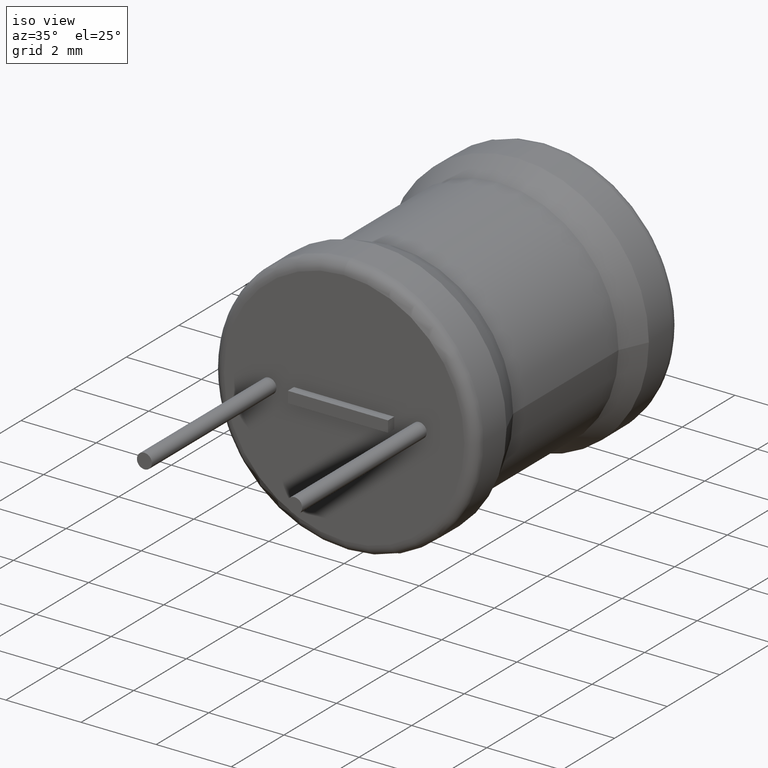
[diagram: clean part render]
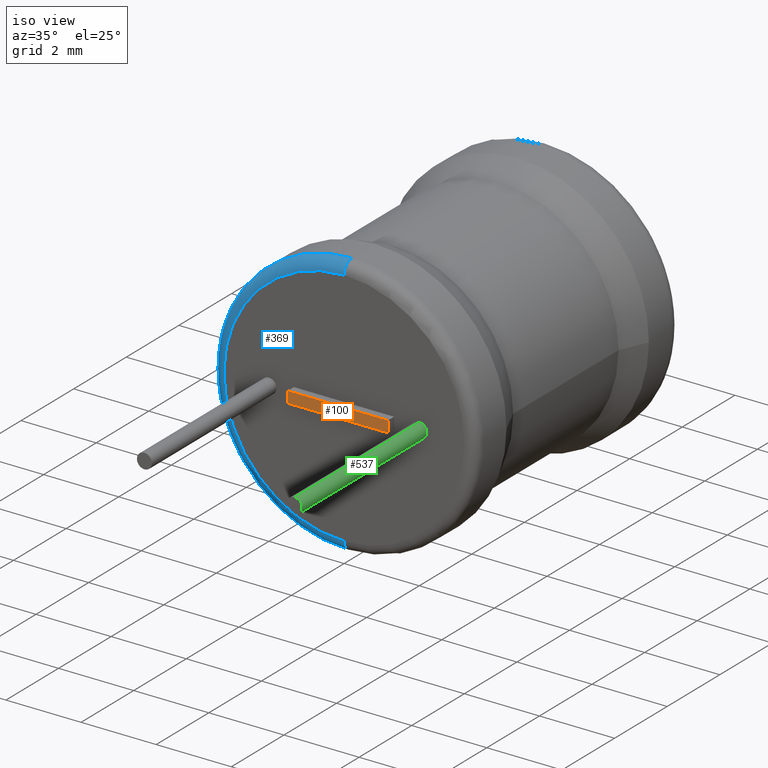
[diagram: same view with three faces highlighted in distinct colors, each labeled with its STEP entity id]
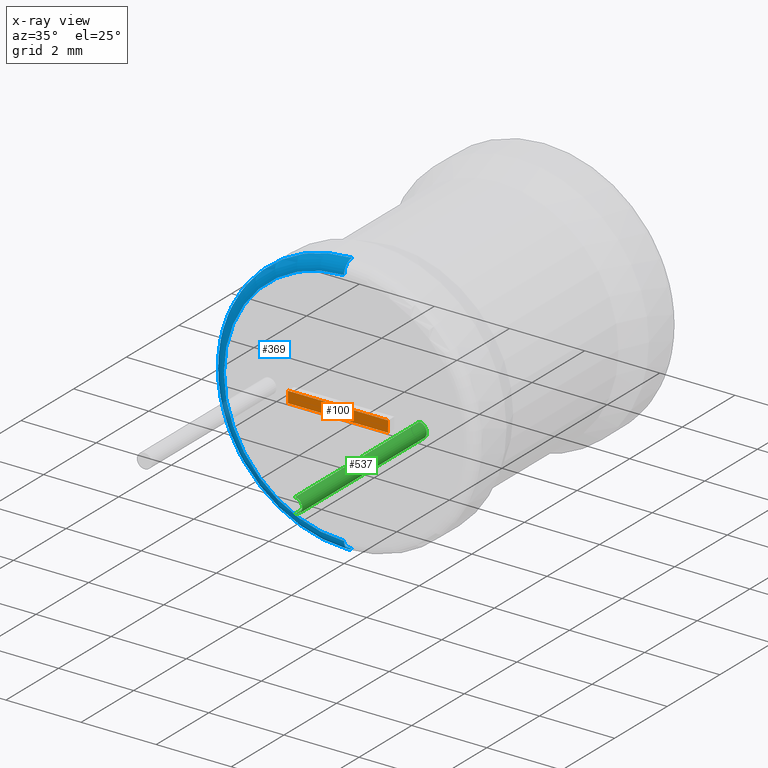
[diagram: x-ray of the same camera — body ghosted, the three highlighted faces saturated]
A machine part, iso view with three faces highlighted in distinct colors.
The next image is the same camera in x-ray (body ghosted, the three faces saturated) — at least one of them is partly hidden behind the body in this view.
Their STEP definitions:

[orange] entity #100 — the highlighted planar face has unit normal (0, -1, 0).
#47 = EDGE_CURVE ( 'NONE', #555, #2078, #2963, .T. ) ;
#100 = ADVANCED_FACE ( 'NONE', ( #1679 ), #2678, .T. ) ;
#130 = VECTOR ( 'NONE', #901, 1000.000000000000000 ) ;
#361 = DIRECTION ( 'NONE',  ( 0.0000000000000000000, -0.0000000000000000000, -1.000000000000000000 ) ) ;
#555 = VERTEX_POINT ( 'NONE', #1801 ) ;
#590 = LINE ( 'NONE', #2099, #673 ) ;
#597 = ORIENTED_EDGE ( 'NONE', *, *, #47, .F. ) ;
#598 = DIRECTION ( 'NONE',  ( 0.0000000000000000000, -0.0000000000000000000, -1.000000000000000000 ) ) ;
#673 = VECTOR ( 'NONE', #1393, 1000.000000000000000 ) ;
#866 = CARTESIAN_POINT ( 'NONE',  ( 6.018531076210112000E-033, -0.2351999999999999900, -0.1500000000000002700 ) ) ;
#901 = DIRECTION ( 'NONE',  ( -1.000000000000000000, 0.0000000000000000000, -2.641422084391221300E-016 ) ) ;
#960 = AXIS2_PLACEMENT_3D ( 'NONE', #1976, #2918, #598 ) ;
#961 = EDGE_LOOP ( 'NONE', ( #1079, #597, #2143, #2648 ) ) ;
#1079 = ORIENTED_EDGE ( 'NONE', *, *, #1642, .T. ) ;
#1255 = CARTESIAN_POINT ( 'NONE',  ( 1.334000000000000100, -0.2351999999999999900, -0.1500000000000006900 ) ) ;
#1326 = CARTESIAN_POINT ( 'NONE',  ( -1.334000000000000100, -0.2351999999999999900, 0.1499999999999992700 ) ) ;
#1393 = DIRECTION ( 'NONE',  ( -0.0000000000000000000, -0.0000000000000000000, -1.000000000000000000 ) ) ;
#1642 = EDGE_CURVE ( 'NONE', #2387, #2078, #2491, .T. ) ;
#1679 = FACE_OUTER_BOUND ( 'NONE', #961, .T. ) ;
#1732 = EDGE_CURVE ( 'NONE', #2634, #2387, #590, .T. ) ;
#1801 = CARTESIAN_POINT ( 'NONE',  ( 1.334000000000000100, -0.2351999999999999900, 0.1499999999999992700 ) ) ;
#1919 = VECTOR ( 'NONE', #2021, 1000.000000000000000 ) ;
#1976 = CARTESIAN_POINT ( 'NONE',  ( 0.0000000000000000000, -0.2351999999999999900, 0.0000000000000000000 ) ) ;
#2021 = DIRECTION ( 'NONE',  ( 1.000000000000000000, 0.0000000000000000000, 3.047794712759101800E-016 ) ) ;
#2036 = VECTOR ( 'NONE', #361, 1000.000000000000000 ) ;
#2061 = CARTESIAN_POINT ( 'NONE',  ( 0.0000000000000000000, -0.2351999999999999900, 0.1499999999999996300 ) ) ;
#2064 = CARTESIAN_POINT ( 'NONE',  ( -1.334000000000000100, -0.2351999999999999900, -0.1500000000000006900 ) ) ;
#2078 = VERTEX_POINT ( 'NONE', #2884 ) ;
#2099 = CARTESIAN_POINT ( 'NONE',  ( -1.334000000000000100, -0.2351999999999999900, -0.1500000000000006900 ) ) ;
#2143 = ORIENTED_EDGE ( 'NONE', *, *, #2230, .T. ) ;
#2230 = EDGE_CURVE ( 'NONE', #555, #2634, #2926, .T. ) ;
#2387 = VERTEX_POINT ( 'NONE', #2064 ) ;
#2491 = LINE ( 'NONE', #866, #1919 ) ;
#2634 = VERTEX_POINT ( 'NONE', #1326 ) ;
#2648 = ORIENTED_EDGE ( 'NONE', *, *, #1732, .T. ) ;
#2678 = PLANE ( 'NONE',  #960 ) ;
#2884 = CARTESIAN_POINT ( 'NONE',  ( 1.334000000000000100, -0.2351999999999999900, -0.1500000000000006900 ) ) ;
#2918 = DIRECTION ( 'NONE',  ( 0.0000000000000000000, -1.000000000000000000, 0.0000000000000000000 ) ) ;
#2926 = LINE ( 'NONE', #2061, #130 ) ;
#2963 = LINE ( 'NONE', #1255, #2036 ) ;

[blue] entity #369 — the highlighted toroidal blend (fillet) surface has major radius 3.2 mm and minor (blend) radius 0.3 mm.
#49 = DIRECTION ( 'NONE',  ( 0.0000000000000000000, 0.0000000000000000000, 1.000000000000000000 ) ) ;
#93 = DIRECTION ( 'NONE',  ( 0.0000000000000000000, 1.000000000000000000, 0.0000000000000000000 ) ) ;
#161 = VERTEX_POINT ( 'NONE', #241 ) ;
#241 = CARTESIAN_POINT ( 'NONE',  ( 4.286263797015735600E-016, 0.2999999999999999300, 3.500000000000000000 ) ) ;
#243 = CARTESIAN_POINT ( 'NONE',  ( 4.102566777143633300E-016, 0.0000000000000000000, -3.200000000000000200 ) ) ;
#311 = CARTESIAN_POINT ( 'NONE',  ( 0.0000000000000000000, 0.0000000000000000000, 3.200000000000000200 ) ) ;
#334 = AXIS2_PLACEMENT_3D ( 'NONE', #1130, #1350, #1604 ) ;
#369 = ADVANCED_FACE ( 'NONE', ( #2553 ), #2630, .T. ) ;
#415 = CIRCLE ( 'NONE', #2449, 0.2999999999999999300 ) ;
#439 = AXIS2_PLACEMENT_3D ( 'NONE', #2756, #891, #2500 ) ;
#517 = CARTESIAN_POINT ( 'NONE',  ( 0.0000000000000000000, 0.2999999999999999300, 3.200000000000000200 ) ) ;
#731 = DIRECTION ( 'NONE',  ( -1.000000000000000000, 0.0000000000000000000, 0.0000000000000000000 ) ) ;
#882 = VERTEX_POINT ( 'NONE', #311 ) ;
#891 = DIRECTION ( 'NONE',  ( 0.0000000000000000000, 1.000000000000000000, 0.0000000000000000000 ) ) ;
#1031 = DIRECTION ( 'NONE',  ( 0.0000000000000000000, 0.0000000000000000000, 1.000000000000000000 ) ) ;
#1037 = CARTESIAN_POINT ( 'NONE',  ( 0.0000000000000000000, 0.0000000000000000000, 0.0000000000000000000 ) ) ;
#1045 = AXIS2_PLACEMENT_3D ( 'NONE', #1037, #2646, #1713 ) ;
#1055 = ORIENTED_EDGE ( 'NONE', *, *, #1940, .F. ) ;
#1130 = CARTESIAN_POINT ( 'NONE',  ( 3.918869757271530500E-016, 0.2999999999999999300, -3.200000000000000200 ) ) ;
#1222 = CIRCLE ( 'NONE', #334, 0.2999999999999999300 ) ;
#1302 = ORIENTED_EDGE ( 'NONE', *, *, #2598, .F. ) ;
#1350 = DIRECTION ( 'NONE',  ( 1.000000000000000000, -0.0000000000000000000, 1.224646799147353200E-016 ) ) ;
#1418 = EDGE_CURVE ( 'NONE', #882, #161, #415, .T. ) ;
#1464 = AXIS2_PLACEMENT_3D ( 'NONE', #1754, #93, #1031 ) ;
#1582 = EDGE_LOOP ( 'NONE', ( #1302, #1055, #2587, #2728 ) ) ;
#1604 = DIRECTION ( 'NONE',  ( 1.224646799147353200E-016, 0.0000000000000000000, -1.000000000000000000 ) ) ;
#1713 = DIRECTION ( 'NONE',  ( 0.0000000000000000000, 0.0000000000000000000, 1.000000000000000000 ) ) ;
#1754 = CARTESIAN_POINT ( 'NONE',  ( 0.0000000000000000000, 0.2999999999999999300, 0.0000000000000000000 ) ) ;
#1940 = EDGE_CURVE ( 'NONE', #882, #2863, #2368, .T. ) ;
#2160 = VERTEX_POINT ( 'NONE', #2466 ) ;
#2368 = CIRCLE ( 'NONE', #1045, 3.200000000000000200 ) ;
#2418 = EDGE_CURVE ( 'NONE', #2160, #161, #2790, .T. ) ;
#2449 = AXIS2_PLACEMENT_3D ( 'NONE', #517, #731, #49 ) ;
#2466 = CARTESIAN_POINT ( 'NONE',  ( 0.0000000000000000000, 0.2999999999999999300, -3.500000000000000000 ) ) ;
#2500 = DIRECTION ( 'NONE',  ( 0.0000000000000000000, 0.0000000000000000000, 1.000000000000000000 ) ) ;
#2553 = FACE_OUTER_BOUND ( 'NONE', #1582, .T. ) ;
#2587 = ORIENTED_EDGE ( 'NONE', *, *, #1418, .T. ) ;
#2598 = EDGE_CURVE ( 'NONE', #2863, #2160, #1222, .T. ) ;
#2630 = TOROIDAL_SURFACE ( 'NONE', #1464, 3.200000000000000200, 0.2999999999999999900 ) ;
#2646 = DIRECTION ( 'NONE',  ( -0.0000000000000000000, -1.000000000000000000, -0.0000000000000000000 ) ) ;
#2728 = ORIENTED_EDGE ( 'NONE', *, *, #2418, .F. ) ;
#2756 = CARTESIAN_POINT ( 'NONE',  ( 0.0000000000000000000, 0.2999999999999999300, 0.0000000000000000000 ) ) ;
#2790 = CIRCLE ( 'NONE', #439, 3.500000000000000000 ) ;
#2863 = VERTEX_POINT ( 'NONE', #243 ) ;

[green] entity #537 — the highlighted cylindrical surface (edge-blend (fillet) strip) has radius 0.2 mm, axis along (-0, 1, -0).
#4 = CARTESIAN_POINT ( 'NONE',  ( 2.000000000000000000, 0.0000000000000000000, -0.2000000000000002300 ) ) ;
#14 = LINE ( 'NONE', #1131, #2170 ) ;
#194 = EDGE_CURVE ( 'NONE', #1763, #457, #14, .T. ) ;
#457 = VERTEX_POINT ( 'NONE', #2369 ) ;
#478 = FACE_OUTER_BOUND ( 'NONE', #1659, .T. ) ;
#537 = ADVANCED_FACE ( 'NONE', ( #478 ), #2414, .T. ) ;
#660 = DIRECTION ( 'NONE',  ( -0.0000000000000000000, 1.000000000000000000, -0.0000000000000000000 ) ) ;
#863 = ORIENTED_EDGE ( 'NONE', *, *, #194, .F. ) ;
#885 = DIRECTION ( 'NONE',  ( -0.0000000000000000000, 1.000000000000000000, -0.0000000000000000000 ) ) ;
#1131 = CARTESIAN_POINT ( 'NONE',  ( 2.000000000000000000, -4.735199999999999900, 0.2000000000000002300 ) ) ;
#1248 = CARTESIAN_POINT ( 'NONE',  ( 2.000000000000000000, -4.735199999999999900, 0.0000000000000000000 ) ) ;
#1321 = CARTESIAN_POINT ( 'NONE',  ( 2.000000000000000000, 0.0000000000000000000, 0.0000000000000000000 ) ) ;
#1323 = CARTESIAN_POINT ( 'NONE',  ( 2.000000000000000000, -4.735199999999999900, 0.0000000000000000000 ) ) ;
#1486 = ORIENTED_EDGE ( 'NONE', *, *, #2062, .T. ) ;
#1571 = DIRECTION ( 'NONE',  ( 0.0000000000000000000, 0.0000000000000000000, -1.000000000000000000 ) ) ;
#1659 = EDGE_LOOP ( 'NONE', ( #1486, #2834, #1977, #863 ) ) ;
#1688 = CIRCLE ( 'NONE', #2640, 0.2000000000000002300 ) ;
#1730 = DIRECTION ( 'NONE',  ( -0.0000000000000000000, 1.000000000000000000, -0.0000000000000000000 ) ) ;
#1763 = VERTEX_POINT ( 'NONE', #2549 ) ;
#1775 = DIRECTION ( 'NONE',  ( -0.0000000000000000000, 1.000000000000000000, -0.0000000000000000000 ) ) ;
#1797 = CARTESIAN_POINT ( 'NONE',  ( 2.000000000000000000, -4.735199999999999900, -0.2000000000000002300 ) ) ;
#1824 = AXIS2_PLACEMENT_3D ( 'NONE', #1248, #1730, #2177 ) ;
#1899 = CIRCLE ( 'NONE', #1824, 0.2000000000000002300 ) ;
#1921 = VERTEX_POINT ( 'NONE', #1951 ) ;
#1951 = CARTESIAN_POINT ( 'NONE',  ( 2.000000000000000000, -4.735199999999999900, -0.2000000000000002300 ) ) ;
#1977 = ORIENTED_EDGE ( 'NONE', *, *, #2400, .F. ) ;
#2062 = EDGE_CURVE ( 'NONE', #1763, #1921, #1899, .T. ) ;
#2170 = VECTOR ( 'NONE', #885, 1000.000000000000000 ) ;
#2177 = DIRECTION ( 'NONE',  ( 0.0000000000000000000, 0.0000000000000000000, -1.000000000000000000 ) ) ;
#2221 = DIRECTION ( 'NONE',  ( 0.0000000000000000000, 0.0000000000000000000, 1.000000000000000000 ) ) ;
#2369 = CARTESIAN_POINT ( 'NONE',  ( 2.000000000000000000, 0.0000000000000000000, 0.2000000000000002300 ) ) ;
#2371 = EDGE_CURVE ( 'NONE', #1921, #2393, #2390, .T. ) ;
#2390 = LINE ( 'NONE', #1797, #2758 ) ;
#2393 = VERTEX_POINT ( 'NONE', #4 ) ;
#2400 = EDGE_CURVE ( 'NONE', #457, #2393, #1688, .T. ) ;
#2414 = CYLINDRICAL_SURFACE ( 'NONE', #2695, 0.2000000000000002300 ) ;
#2549 = CARTESIAN_POINT ( 'NONE',  ( 2.000000000000000000, -4.735199999999999900, 0.2000000000000002300 ) ) ;
#2640 = AXIS2_PLACEMENT_3D ( 'NONE', #1321, #2964, #1571 ) ;
#2695 = AXIS2_PLACEMENT_3D ( 'NONE', #1323, #1775, #2221 ) ;
#2758 = VECTOR ( 'NONE', #660, 1000.000000000000000 ) ;
#2834 = ORIENTED_EDGE ( 'NONE', *, *, #2371, .T. ) ;
#2964 = DIRECTION ( 'NONE',  ( -0.0000000000000000000, 1.000000000000000000, -0.0000000000000000000 ) ) ;